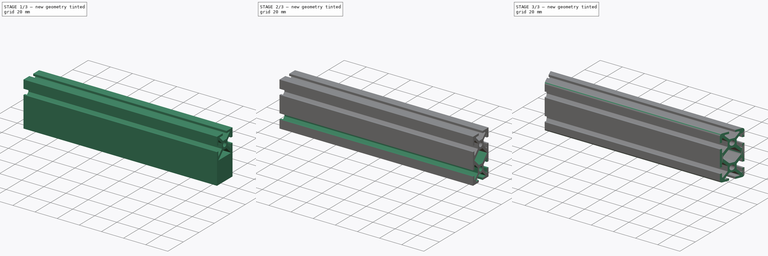
[diagram: build sequence overview — one tinted view per stage of 3, left to right]
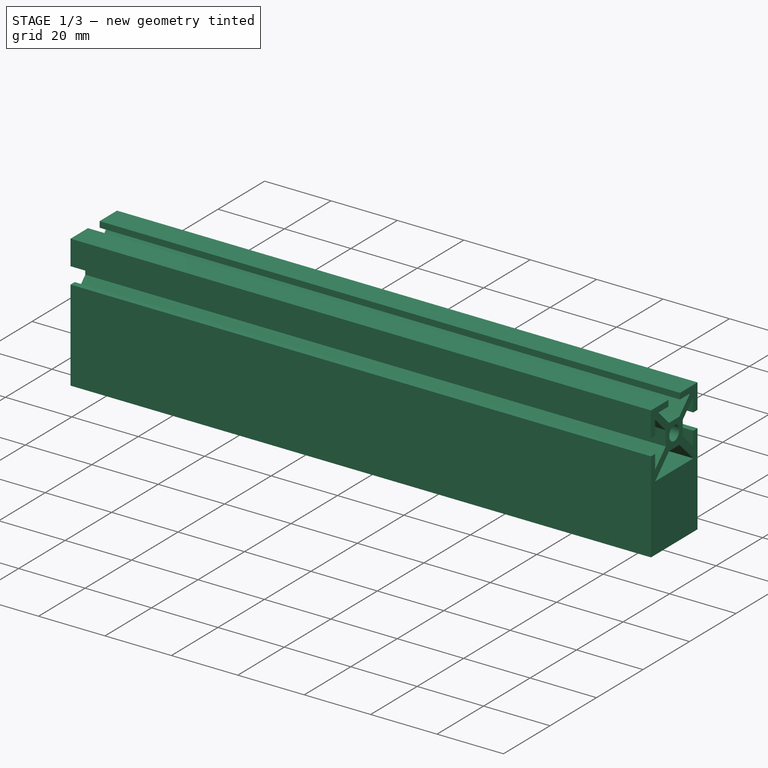
[diagram: stage 1 of 3 — iso view after this stage's code; geometry added in this stage tinted green]
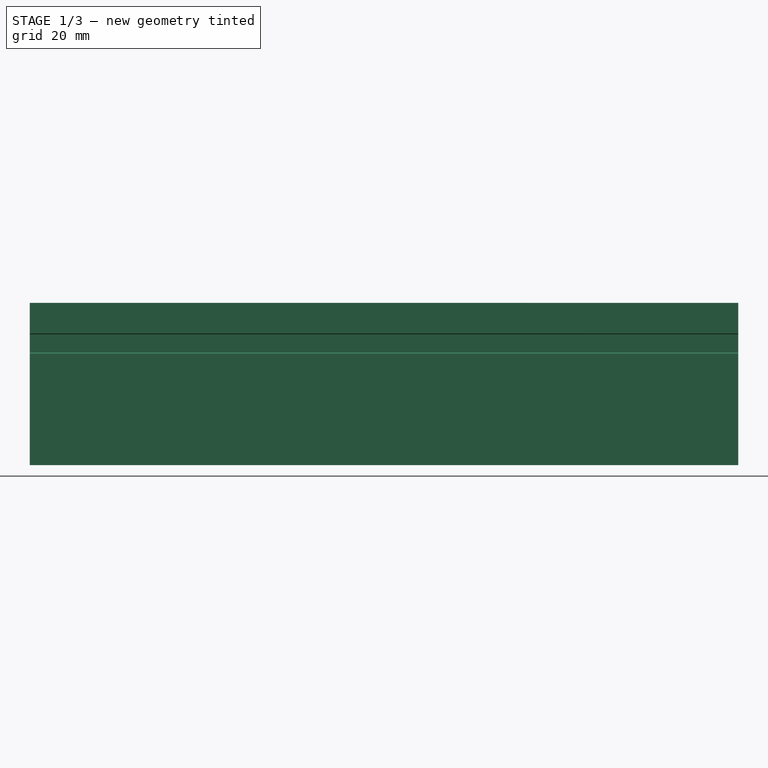
[diagram: stage 1 of 3 — front view after this stage's code; geometry added in this stage tinted green]
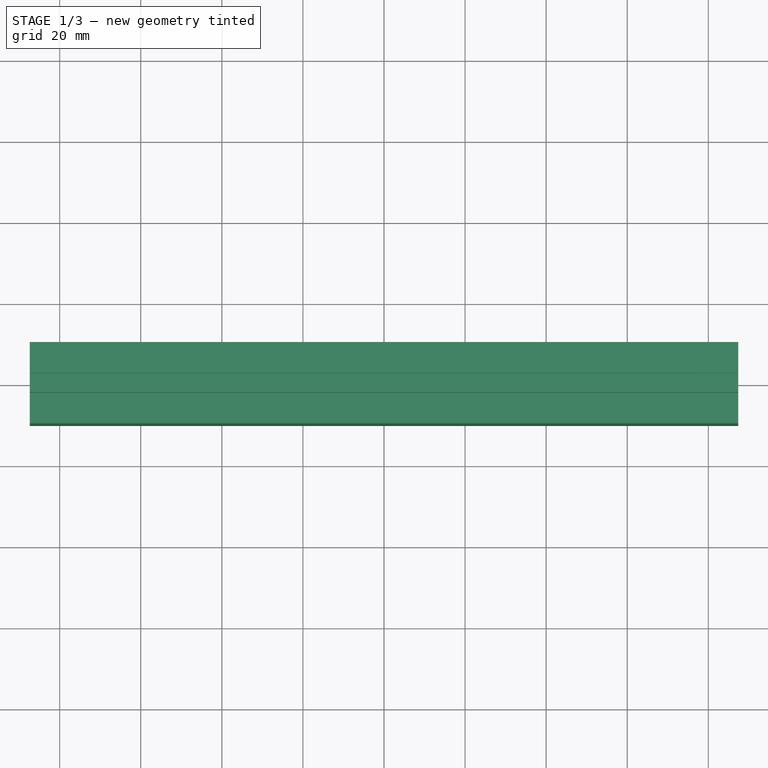
[diagram: stage 1 of 3 — top view after this stage's code; geometry added in this stage tinted green]
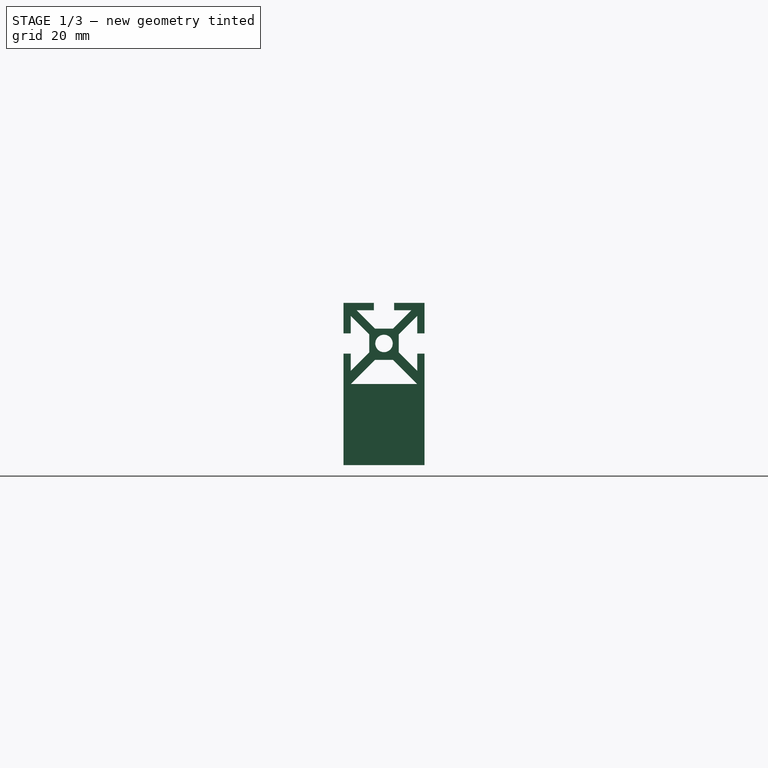
[diagram: stage 1 of 3 — right view after this stage's code; geometry added in this stage tinted green]
FCSTD DOCUMENT  (FreeCAD 1.0R39109 (Git))
Label: OCT-FREXT-UA
License: All rights reserved
LicenseURL: https://en.wikipedia.org/wiki/All_rights_reserved
objects: PartDesign::Plane×8, PartDesign::Line×5, Sketcher::SketchObject×3, PartDesign::Point×3, PartDesign::Pocket×2, PartDesign::Fillet×2, App::Link×1, PartDesign::Pad×1, PartDesign::Mirrored×1, PartDesign::Body×1
note: 40 computed .brp shape members not serialized (recipe doc carries the construction recipe); baked Part::Feature solids carry a one-line shape summary decoded from their .brp
EXTERNAL_REF file=../master.FCStd obj=Spreadsheet

FEATURE [App::Link] Link  label="dims"
  LinkedObject = -> <external ../master.FCStd>#Spreadsheet
FEATURE [Sketcher::SketchObject] Sketch
  ArcFitTolerance = 1e-06
  AttachmentSupport = -> [YZ_Plane]
  FullyConstrained = true
  MakeInternals = false
  MapMode = 5
  Placement = pos=(0,0,0) rot=(0.57735,0.57735,0.57735;2.0944rad)
  sketch-geometry (5):
    g0: LineSegment StartX=10 StartY=-20 StartZ=0 EndX=10 EndY=20 EndZ=0
    g1: LineSegment StartX=10 StartY=20 StartZ=0 EndX=-10 EndY=20 EndZ=0
    g2: LineSegment StartX=-10 StartY=20 StartZ=0 EndX=-10 EndY=-20 EndZ=0
    g3: LineSegment StartX=-10 StartY=-20 StartZ=0 EndX=10 EndY=-20 EndZ=0
    g4: GeomPoint [constr] X=0 Y=0 Z=0
  constraints (12):
    c: Coincident(g0,g1)
    c: Coincident(g1,g2)
    c: Coincident(g2,g3)
    c: Coincident(g3,g0)
    c: Vertical(g0)
    c: Vertical(g2)
    c: Horizontal(g1)
    c: Horizontal(g3)
    c: Symmetric(g2,g0,g4)
    c: Coincident(g4,g-1)
    c: DistanceY(g2,g2) = 40
    c: DistanceX(g1,g1) = 20
FEATURE [PartDesign::Pad] Pad
  Direction = (1,0,0)
  Length = 174.798
  Length2 = 10
  Midplane = true
  Placement = pos=(0,0,0) rot=(1,1,1;2.0944rad)
  Profile = -> Sketch
  ReferenceAxis = -> Sketch [N_Axis]
  Refine = true
  Suppressed = false
  Type = 0
  expr: Length = <<dims>>.opFurnace
FEATURE [PartDesign::Plane] DatumPlane  label="edge face"
  AttachmentOffset = pos=(0,0,87.3991) rot=(0,0,1;0rad)
  AttachmentSupport = -> [YZ_Plane]
  Length = 60
  MapMode = 5
  Placement = pos=(87.3991,0,0) rot=(0.57735,0.57735,0.57735;2.0944rad)
  ResizeMode = 0
  Width = 60
  expr: .AttachmentOffset.Base.z = <<dims>>.opFurnace / 2
FEATURE [Sketcher::SketchObject] Sketch001
  ArcFitTolerance = 1e-06
  AttachmentSupport = -> [DatumPlane]
  FullyConstrained = true
  MakeInternals = false
  MapMode = 5
  Placement = pos=(87.3991,0,0) rot=(0.57735,0.57735,0.57735;2.0944rad)
  sketch-geometry (36):
    g0: LineSegment StartX=2.5 StartY=20 StartZ=0 EndX=2.5 EndY=18.2 EndZ=0
    g1: LineSegment StartX=2.5 StartY=18.2 StartZ=0 EndX=6.78579 EndY=18.2 EndZ=0
    g2: LineSegment StartX=6.78579 StartY=18.2 StartZ=0 EndX=2.23579 EndY=13.65 EndZ=0
    g3: LineSegment StartX=2.23579 StartY=13.65 StartZ=0 EndX=-2.23579 EndY=13.65 EndZ=0
    g4: LineSegment StartX=-2.23579 StartY=13.65 StartZ=0 EndX=-6.78579 EndY=18.2 EndZ=0
    g5: LineSegment StartX=-6.78579 StartY=18.2 StartZ=0 EndX=-2.5 EndY=18.2 EndZ=0
    g6: LineSegment StartX=-2.5 StartY=18.2 StartZ=0 EndX=-2.5 EndY=20 EndZ=0
    g7: LineSegment StartX=-2.5 StartY=20 StartZ=0 EndX=2.5 EndY=20 EndZ=0
    g8: LineSegment [constr] StartX=10 StartY=-20 StartZ=0 EndX=10 EndY=20 EndZ=0
    g9: LineSegment [constr] StartX=10 StartY=20 StartZ=0 EndX=-10 EndY=20 EndZ=0
    g10: LineSegment [constr] StartX=-10 StartY=20 StartZ=0 EndX=-10 EndY=-20 EndZ=0
    g11: LineSegment [constr] StartX=-10 StartY=-20 StartZ=0 EndX=10 EndY=-20 EndZ=0
    g12: GeomPoint [constr] X=0 Y=0 Z=0
    g13: LineSegment StartX=10 StartY=12.5 StartZ=0 EndX=10 EndY=7.5 EndZ=0
    g14: LineSegment StartX=10 StartY=7.5 StartZ=0 EndX=8.2 EndY=7.5 EndZ=0
    g15: LineSegment StartX=8.2 StartY=7.5 StartZ=0 EndX=8.2 EndY=3.21421 EndZ=0
    g16: LineSegment StartX=8.2 StartY=3.21421 StartZ=0 EndX=3.65 EndY=7.76421 EndZ=0
    g17: LineSegment StartX=3.65 StartY=7.76421 StartZ=0 EndX=3.65 EndY=12.2358 EndZ=0
    g18: LineSegment StartX=3.65 StartY=12.2358 StartZ=0 EndX=8.2 EndY=16.7858 EndZ=0
    g19: LineSegment StartX=8.2 StartY=16.7858 StartZ=0 EndX=8.2 EndY=12.5 EndZ=0
    g20: LineSegment StartX=8.2 StartY=12.5 StartZ=0 EndX=10 EndY=12.5 EndZ=0
    g21: LineSegment [constr] StartX=10 StartY=10 StartZ=0 EndX=-10 EndY=10 EndZ=0
    g22: LineSegment StartX=-10 StartY=12.5 StartZ=0 EndX=-8.2 EndY=12.5 EndZ=0
    g23: LineSegment StartX=-8.2 StartY=12.5 StartZ=0 EndX=-8.2 EndY=16.7858 EndZ=0
    g24: LineSegment StartX=-8.2 StartY=16.7858 StartZ=0 EndX=-3.65 EndY=12.2358 EndZ=0
    g25: LineSegment StartX=-3.65 StartY=12.2358 StartZ=0 EndX=-3.65 EndY=7.76421 EndZ=0
    g26: LineSegment StartX=-3.65 StartY=7.76421 StartZ=0 EndX=-8.2 EndY=3.21421 EndZ=0
    g27: LineSegment StartX=-8.2 StartY=3.21421 StartZ=0 EndX=-8.2 EndY=7.5 EndZ=0
    g28: LineSegment StartX=-8.2 StartY=7.5 StartZ=0 EndX=-10 EndY=7.5 EndZ=0
    g29: LineSegment StartX=-10 StartY=7.5 StartZ=0 EndX=-10 EndY=12.5 EndZ=0
    g30: LineSegment StartX=-8.2 StartY=0 StartZ=0 EndX=8.2 EndY=0 EndZ=0
    g31: LineSegment StartX=8.2 StartY=0 StartZ=0 EndX=2.23579 EndY=5.96421 EndZ=0
    g32: LineSegment StartX=2.23579 StartY=5.96421 StartZ=0 EndX=-2.23579 EndY=5.96421 EndZ=0
    g33: LineSegment StartX=-2.23579 StartY=5.96421 StartZ=0 EndX=-8.2 EndY=0 EndZ=0
    g34: Circle CenterX=2e-16 CenterY=10 CenterZ=0 NormalX=0 NormalY=0 NormalZ=1 AngleXU=0 Radius=2.15
    g35: LineSegment [constr] StartX=-8.2 StartY=0 StartZ=0 EndX=-8.2 EndY=3.21421 EndZ=0
  constraints (99):
    c: Vertical(g0)
    c: Coincident(g0,g1)
    c: Horizontal(g1)
    c: Coincident(g1,g2)
    c: Coincident(g2,g3)
    c: Coincident(g3,g4)
    c: Coincident(g4,g5)
    c: Horizontal(g5)
    c: Coincident(g5,g6)
    c: Coincident(g6,g7)
    c: Coincident(g7,g0)
    c: Vertical(g6)
    c: Equal(g4,g2)
    c: Symmetric(g2,g3,g-2)
    c: Symmetric(g6,g0,g-2)
    c: Equal(g5,g1)
    c: Coincident(g8,g9)
    c: Coincident(g9,g10)
    c: Coincident(g10,g11)
    c: Coincident(g11,g8)
    c: Vertical(g8)
    c: Vertical(g10)
    c: Horizontal(g9)
    c: Horizontal(g11)
    c: Symmetric(g10,g8,g12)
    c: Coincident(g12,g-1)
    c: DistanceX(g9,g9) = 20
    c: DistanceY(g10,g10) = 40
    c: PointOnObject(g0,g9)
    c: DistanceY(g6,g6) = 1.8
    c: DistanceX(g7,g7) = 5
    c: PointOnObject(g13,g8)
    c: PointOnObject(g13,g8)
    c: Coincident(g13,g14)
    c: Horizontal(g14)
    c: Coincident(g14,g15)
    c: Vertical(g15)
    c: Coincident(g15,g16)
    c: Coincident(g16,g17)
    c: Coincident(g17,g18)
    c: Coincident(g18,g19)
    c: Coincident(g19,g20)
    c: Coincident(g20,g13)
    c: Horizontal(g20)
    c: Vertical(g19)
    c: Equal(g5,g19)
    c: Equal(g14,g20)
    c: Equal(g18,g16)
    c: Vertical(g17)
    c: Equal(g15,g19)
    c: Equal(g18,g2)
    c: Equal(g20,g0)
    c: Equal(g7,g13)
    c: Symmetric(g16,g17,g21)
    c: PointOnObject(g21,g8)
    c: PointOnObject(g21,g10)
    c: DistanceY(g12,g21) = 10
    c: Angle(g1,g2) = 0.785398
    c: Angle(g18,g19) = 0.785398
    c: DistanceY(g3,g6) = 6.35
    c: Horizontal(g22)
    c: Coincident(g22,g23)
    c: Coincident(g23,g24)
    c: Coincident(g24,g25)
    c: Coincident(g25,g26)
    c: Coincident(g26,g27)
    c: Coincident(g27,g28)
    c: PointOnObject(g28,g10)
    c: Coincident(g28,g29)
    c: PointOnObject(g29,g10)
    c: Coincident(g22,g29)
    c: Vertical(g23)
    c: Horizontal(g28)
    c: Vertical(g27)
    c: Equal(g28,g22)
    c: Equal(g24,g26)
    c: Equal(g23,g27)
    c: Angle(g23,g24) = 0.785398
    c: Equal(g22,g6)
    c: Equal(g24,g4)
    c: Symmetric(g24,g25,g21)
    c: Equal(g25,g3)
    c: Coincident(g30,g31)
    c: Coincident(g31,g32)
    c: Horizontal(g32)
    c: Coincident(g32,g33)
    c: Coincident(g30,g33)
    c: PointOnObject(g30,g-1)
    c: Symmetric(g30,g30,g-2)
    c: Equal(g33,g31)
    c: Symmetric(g21,g21,g34)
    c: Diameter(g34) = 4.3
    c: Equal(g29,g13)
    c: Distance(g1,g18) = 2
    c: Coincident(g35,g30)
    c: Coincident(g35,g26)
    c: Vertical(g35)
    c: Parallel(g31,g16)
    c: Equal(g32,g25)
FEATURE [PartDesign::Pocket] Pocket
  BaseFeature = -> Pad
  Direction = (-1,0,0)
  Length = 5
  Length2 = 5
  Placement = pos=(0,0,0) rot=(1,1,1;2.0944rad)
  Profile = -> Sketch001
  ReferenceAxis = -> Sketch001 [N_Axis]
  Refine = true
  Suppressed = false
  Type = 1
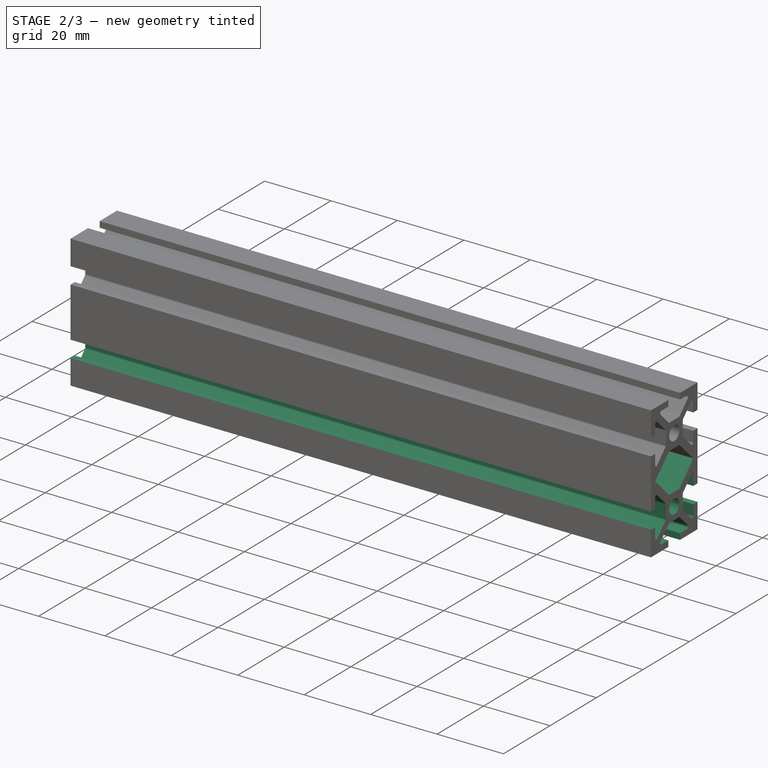
[diagram: stage 2 of 3 — iso view after this stage's code; geometry added in this stage tinted green]
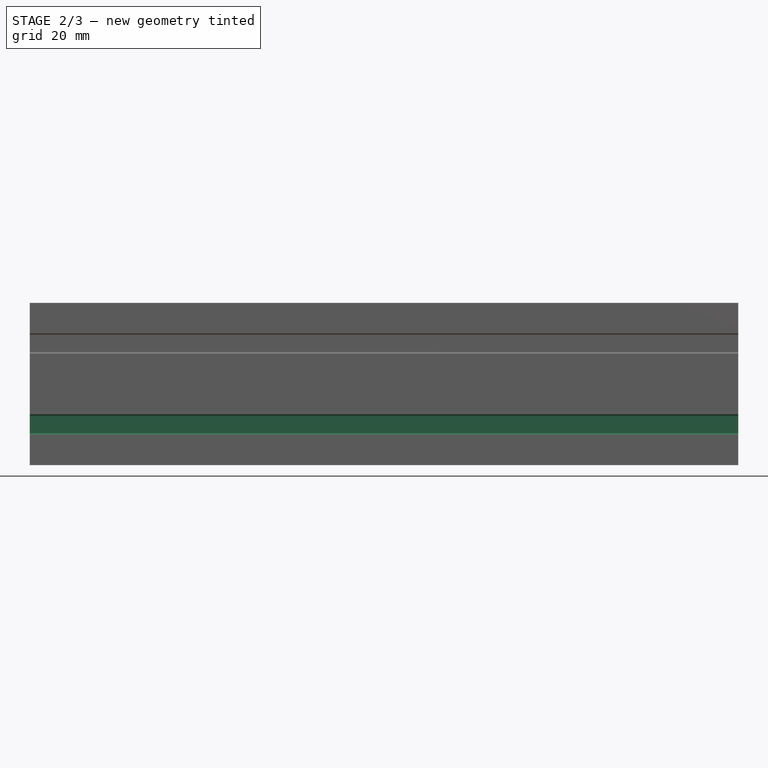
[diagram: stage 2 of 3 — front view after this stage's code; geometry added in this stage tinted green]
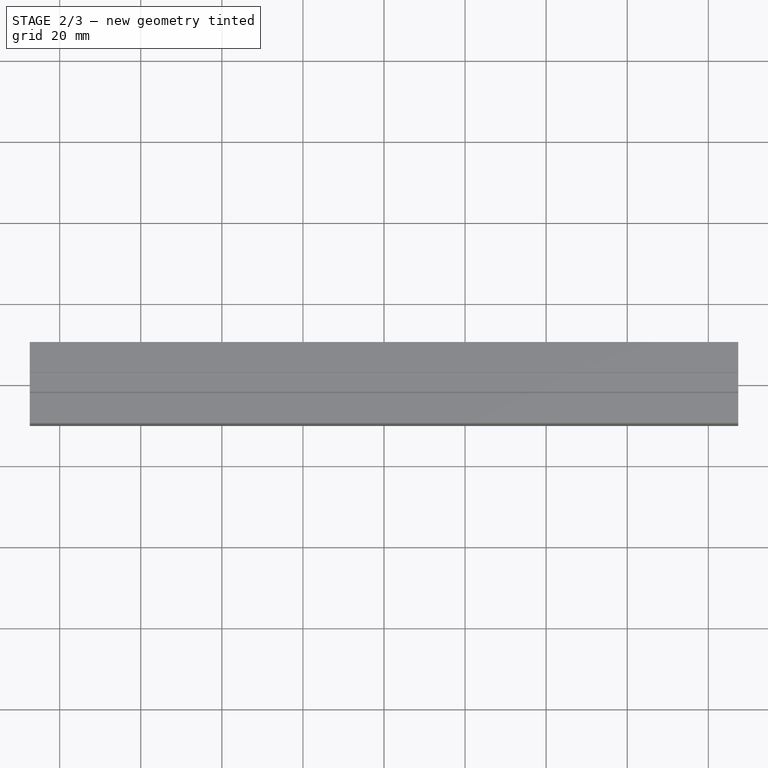
[diagram: stage 2 of 3 — top view after this stage's code; geometry added in this stage tinted green]
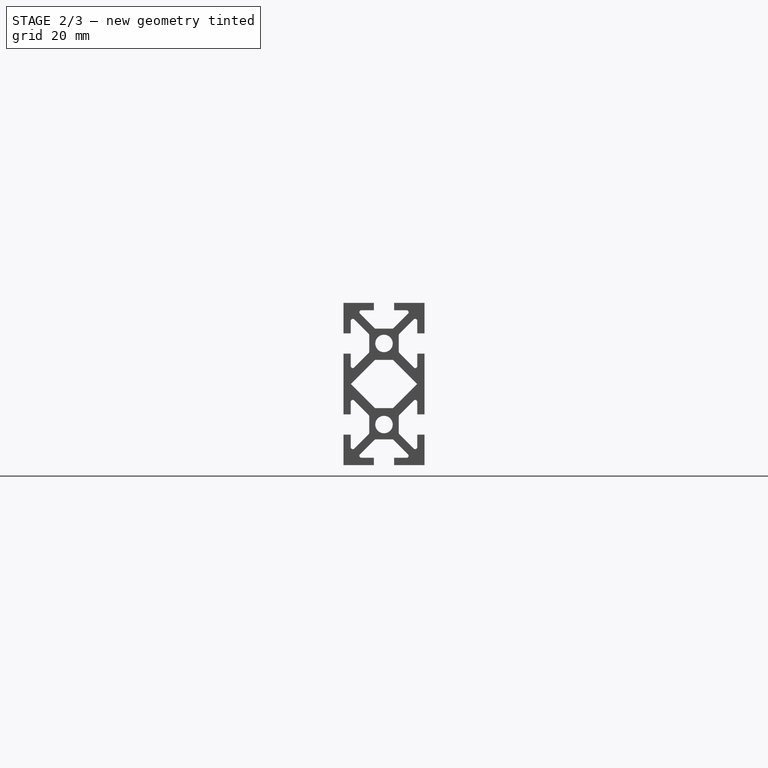
[diagram: stage 2 of 3 — right view after this stage's code; geometry added in this stage tinted green]
FEATURE [PartDesign::Mirrored] Mirrored
  BaseFeature = -> Pocket
  MirrorPlane = -> XY_Plane
  Originals = -> [Pocket]
  Placement = pos=(0,0,0) rot=(1,1,1;2.0944rad)
  Refine = true
  Suppressed = false
  TransformMode = 0
FEATURE [PartDesign::Fillet] Fillet
  Base = -> Mirrored [Edge136,Edge137,Edge138,Edge139,Edge145,Edge146,Edge147,Edge148,Edge154,Edge155,Edge156,Edge157,Edge165,Edge164,Edge163,Edge162,Edge167,Edge168,Edge169,Edge170,Edge128,Edge129,Edge130,Edge131]
  BaseFeature = -> Mirrored
  Placement = pos=(0,0,0) rot=(1,1,1;2.0944rad)
  Radius = 0.5
  Refine = true
  SupportTransform = false
  Suppressed = false
  UseAllEdges = false
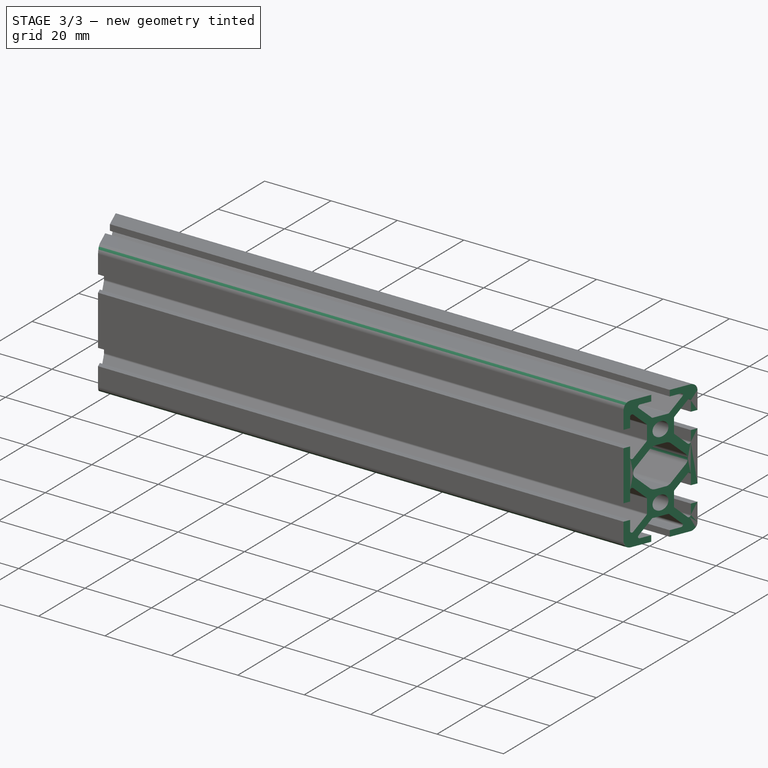
[diagram: stage 3 of 3 — iso view after this stage's code; geometry added in this stage tinted green]
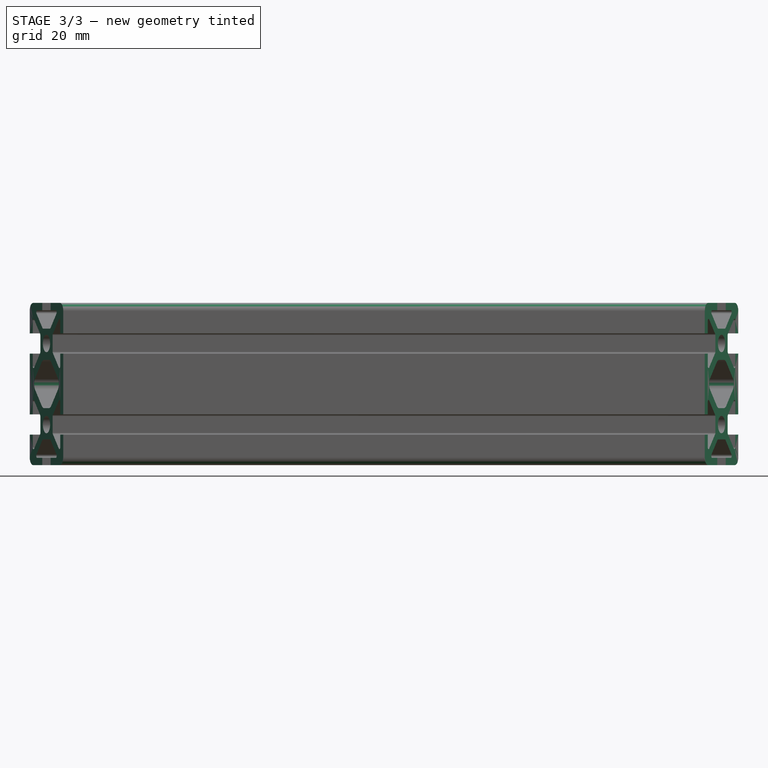
[diagram: stage 3 of 3 — front view after this stage's code; geometry added in this stage tinted green]
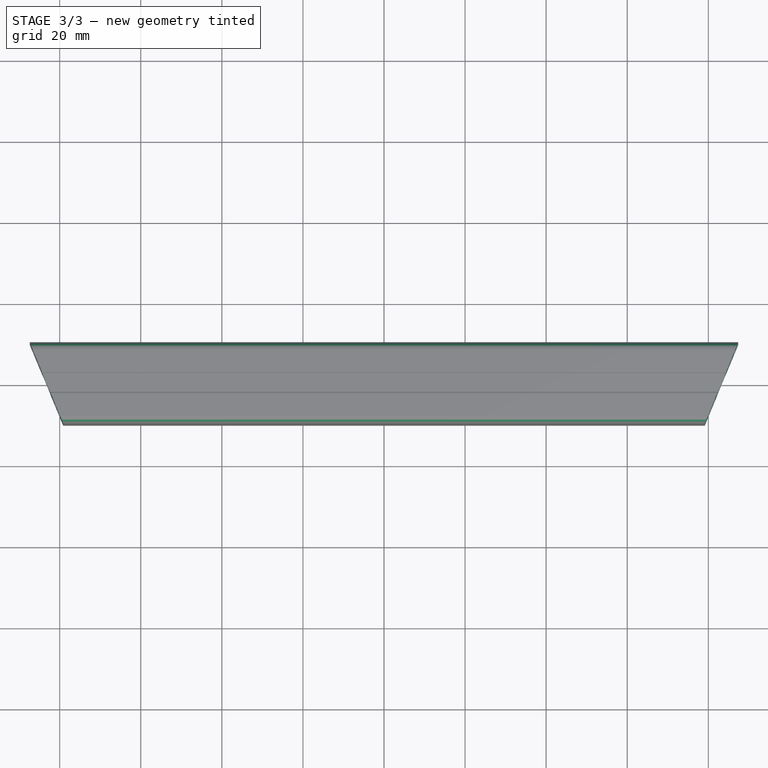
[diagram: stage 3 of 3 — top view after this stage's code; geometry added in this stage tinted green]
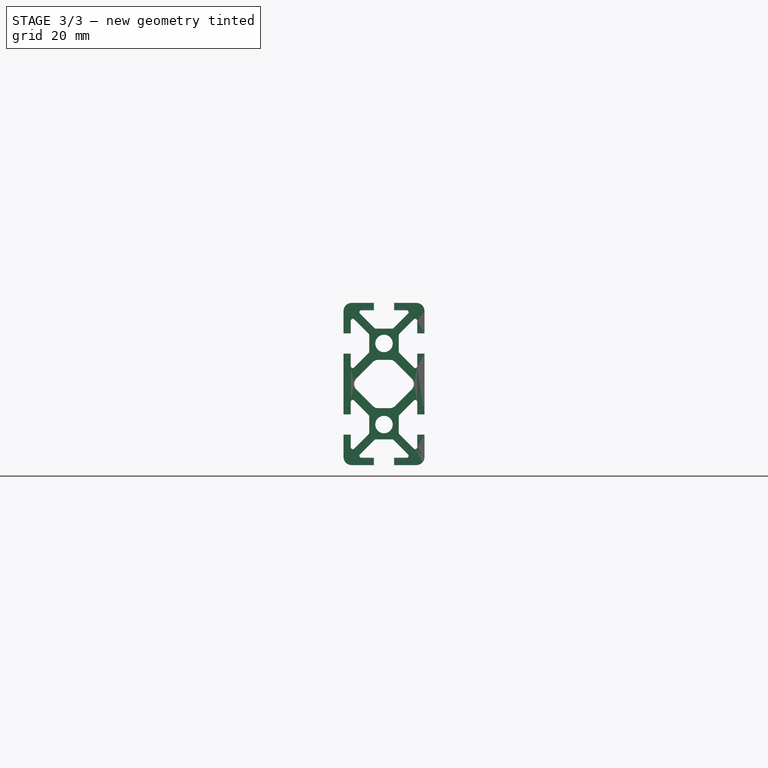
[diagram: stage 3 of 3 — right view after this stage's code; geometry added in this stage tinted green]
FEATURE [PartDesign::Fillet] Fillet001
  Base = -> Fillet [Edge173,Edge225,Edge146,Edge94,Edge243,Edge242,Edge251,Edge249,Edge247,Edge245]
  BaseFeature = -> Fillet
  Placement = pos=(0,0,0) rot=(1,1,1;2.0944rad)
  Radius = 2
  Refine = true
  SupportTransform = false
  Suppressed = false
  UseAllEdges = false
FEATURE [Sketcher::SketchObject] Sketch002
  ArcFitTolerance = 1e-06
  AttachmentSupport = -> [XY_Plane]
  FullyConstrained = true
  MakeInternals = false
  MapMode = 5
  expr: Constraints[13] = <<dims>>.opFurnace
  sketch-geometry (6):
    g0: LineSegment StartX=87.3991 StartY=-10 StartZ=0 EndX=87.3991 EndY=10 EndZ=0
    g1: LineSegment StartX=87.3991 StartY=10 StartZ=0 EndX=79.1148 EndY=-10 EndZ=0
    g2: LineSegment StartX=79.1148 StartY=-10 StartZ=0 EndX=87.3991 EndY=-10 EndZ=0
    g3: LineSegment StartX=-87.3991 StartY=-10 StartZ=0 EndX=-79.1148 EndY=-10 EndZ=0
    g4: LineSegment StartX=-79.1148 StartY=-10 StartZ=0 EndX=-87.3991 EndY=10 EndZ=0
    g5: LineSegment StartX=-87.3991 StartY=10 StartZ=0 EndX=-87.3991 EndY=-10 EndZ=0
  constraints (17):
    c: Coincident(g0,g1)
    c: Coincident(g1,g2)
    c: Coincident(g2,g0)
    c: Coincident(g3,g4)
    c: Coincident(g4,g5)
    c: Coincident(g5,g3)
    c: Horizontal(g3)
    c: Vertical(g0)
    c: Vertical(g5)
    c: Horizontal(g2)
    c: Symmetric(g3,g1,g-2)
    c: Equal(g3,g2)
    c: Equal(g0,g5)
    c: DistanceX(g4,g0) = 174.798
    c: DistanceY(g-1,g4) = 10
    c: DistanceY(g5,g5) = 20
    c: Angle(g5,g4) = 0.392699
FEATURE [PartDesign::Pocket] Pocket001
  BaseFeature = -> Fillet001
  Direction = (0,0,-1)
  Length = 5
  Length2 = 5
  Midplane = true
  Placement = pos=(0,0,0) rot=(1,1,1;2.0944rad)
  Profile = -> Sketch002
  ReferenceAxis = -> Sketch002 [N_Axis]
  Refine = true
  Suppressed = false
  Type = 1
FEATURE [PartDesign::Plane] DatumPlane001  label="panel plane horizontal"
  AttachmentOffset = pos=(0,0,10) rot=(0,0,1;0rad)
  AttachmentSupport = -> [XY_Plane]
  Length = 60
  MapMode = 5
  Placement = pos=(0,0,10) rot=(0,0,1;0rad)
  ResizeMode = 0
  Width = 60
FEATURE [PartDesign::Plane] DatumPlane002  label="panel plane 1"
  AttachmentOffset = pos=(0,0,75) rot=(0,0,1;0rad)
  AttachmentSupport = -> [YZ_Plane]
  Length = 60
  MapMode = 5
  Placement = pos=(75,0,0) rot=(0.57735,0.57735,0.57735;2.0944rad)
  ResizeMode = 0
  Width = 60
FEATURE [PartDesign::Plane] DatumPlane003  label="panel plane 2"
  AttachmentOffset = pos=(0,0,75) rot=(0,0,1;0rad)
  AttachmentSupport = -> [YZ_Plane]
  Length = 60
  MapMode = 5
  Placement = pos=(-75,0,0) rot=(0.57735,-0.57735,-0.57735;2.0944rad)
  ResizeMode = 0
  Width = 60
FEATURE [PartDesign::Line] DatumLine  label="panel line 1"
  AttacherType = Attacher::AttachEngineLine
  AttachmentSupport = -> [DatumPlane002,DatumPlane001]
  Length = 20
  MapMode = 30
  Placement = pos=(75,0,10) rot=(1,0,0;1.5708rad)
  ResizeMode = 0
FEATURE [PartDesign::Line] DatumLine001  label="panel line 2"
  AttacherType = Attacher::AttachEngineLine
  AttachmentSupport = -> [DatumPlane003,DatumPlane001]
  Length = 20
  MapMode = 30
  Placement = pos=(-75,0,10) rot=(0,0.707107,0.707107;3.14159rad)
  ResizeMode = 0
FEATURE [PartDesign::Plane] DatumPlane004  label="brace plane"
  AttachmentOffset = pos=(15,0,0) rot=(0,1,0;1.5708rad)
  AttachmentSupport = -> [Pocket001]
  Length = 60
  MapMode = 7
  Placement = pos=(64.1148,-10,18) rot=(0,1,0;4.71239rad)
  ResizeMode = 0
  Width = 60
FEATURE [PartDesign::Plane] DatumPlane005  label="brace plane horizontal"
  AttachmentOffset = pos=(0,0,10) rot=(0,0,1;0rad)
  AttachmentSupport = -> [XY_Plane]
  Length = 60
  MapMode = 5
  Placement = pos=(0,0,10) rot=(0,0,1;0rad)
  ResizeMode = 0
  Width = 60
FEATURE [PartDesign::Line] DatumLine002  label="brace line"
  AttacherType = Attacher::AttachEngineLine
  AttachmentSupport = -> [DatumPlane005,DatumPlane004]
  Length = 20
  MapMode = 30
  Placement = pos=(64.1148,0,10) rot=(1,0,0;1.5708rad)
  ResizeMode = 0
FEATURE [PartDesign::Point] DatumPoint  label="brace point"
  AttacherType = Attacher::AttachEnginePoint
  AttachmentSupport = -> [DatumLine002,Pocket001]
  MapMode = 40
  Placement = pos=(64.1148,-10,10) rot=(0,0,1;0rad)
FEATURE [PartDesign::Plane] DatumPlane006  label="chamber base plane"
  AttachmentOffset = pos=(0,0,70) rot=(0,0,1;0rad)
  AttachmentSupport = -> [YZ_Plane]
  Length = 60
  MapMode = 5
  Placement = pos=(70,0,0) rot=(0.57735,0.57735,0.57735;2.0944rad)
  ResizeMode = 0
  Width = 60
FEATURE [PartDesign::Line] DatumLine003  label="chamber base line"
  AttacherType = Attacher::AttachEngineLine
  AttachmentSupport = -> [DatumPlane006,XZ_Plane]
  Length = 20
  MapMode = 30
  Placement = pos=(70,0,0) rot=(0,1,0;3.14159rad)
  ResizeMode = 0
FEATURE [PartDesign::Point] DatumPoint001
  AttacherType = Attacher::AttachEnginePoint
  AttachmentOffset = pos=(0,0,20) rot=(0,0,1;0rad)
  AttachmentSupport = -> [DatumLine003,XY_Plane]
  MapMode = 40
  Placement = pos=(70,0,20) rot=(0,0,1;0rad)
FEATURE [PartDesign::Plane] DatumPlane007  label="upper panel plane"
  AttachmentOffset = pos=(0,0,75) rot=(0,0,1;0rad)
  AttachmentSupport = -> [YZ_Plane]
  Length = 60
  MapMode = 5
  Placement = pos=(-75,0,0) rot=(0.57735,-0.57735,-0.57735;2.0944rad)
  ResizeMode = 0
  Width = 60
FEATURE [PartDesign::Line] DatumLine004  label="upper panel line"
  AttacherType = Attacher::AttachEngineLine
  AttachmentSupport = -> [DatumPlane007,DatumPlane001]
  Length = 20
  MapMode = 30
  Placement = pos=(-75,0,10) rot=(0,0.707107,0.707107;3.14159rad)
  ResizeMode = 0
FEATURE [PartDesign::Point] DatumPoint002  label="upper panel point"
  AttacherType = Attacher::AttachEnginePoint
  AttachmentOffset = pos=(0,10,0) rot=(0,0,1;0rad)
  AttachmentSupport = -> [DatumLine004,XZ_Plane]
  MapMode = 40
  Placement = pos=(-75,10,10) rot=(0,0,1;0rad)
FEATURE [PartDesign::Body] Body
  AllowCompound = false
  Group = -> [Sketch,Pad,DatumPlane,Sketch001,Pocket,Mirrored,Fillet,Fillet001,Sketch002,Pocket001,DatumPlane001,DatumPlane002,DatumPlane003,DatumLine,DatumLine001,DatumPlane004,DatumPlane005,DatumLine002,DatumPoint,DatumPlane006,DatumLine003,DatumPoint001,DatumPlane007,DatumLine004,DatumPoint002]
  Origin = -> Origin
  Tip = -> Pocket001
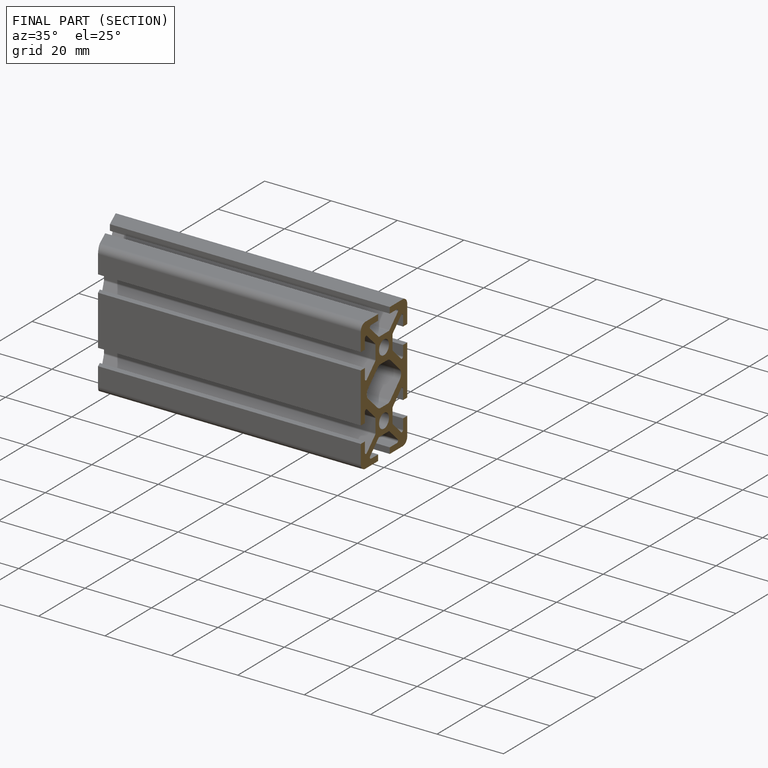
[diagram: finished part — half-section view (interior)]
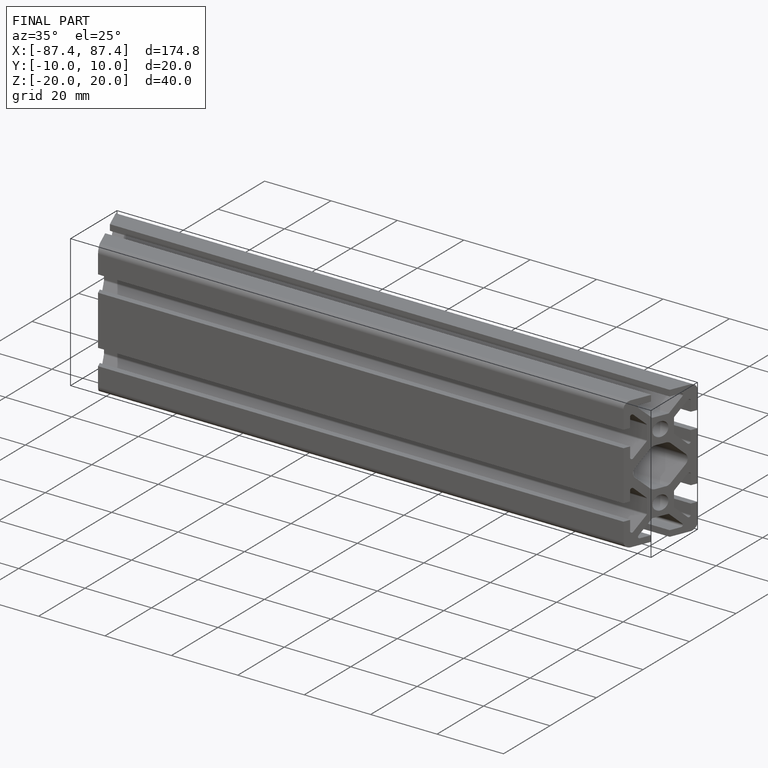
[diagram: finished part — iso view with bounding-box wireframe]
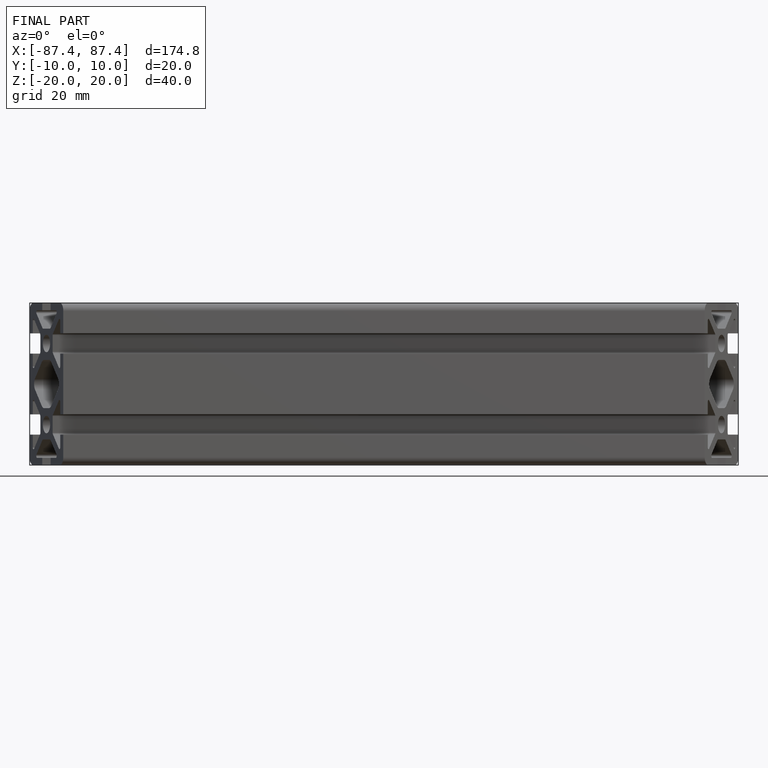
[diagram: finished part — front view with bounding-box wireframe]
